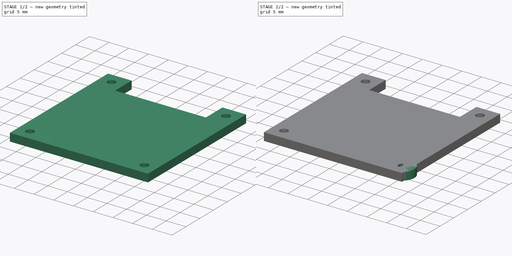
[diagram: build sequence overview — one tinted view per stage of 2, left to right]
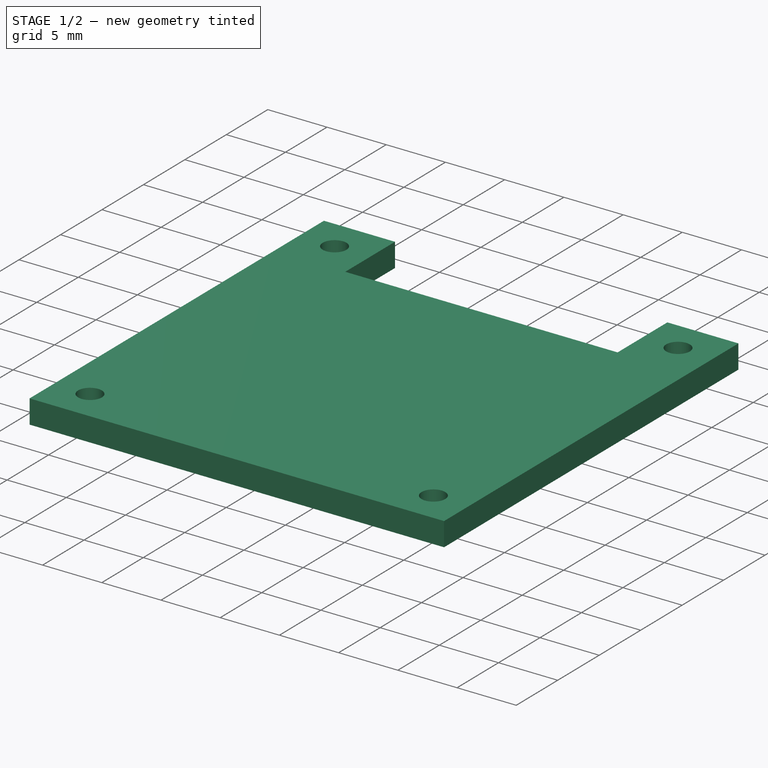
[diagram: stage 1 of 2 — iso view after this stage's code; geometry added in this stage tinted green]
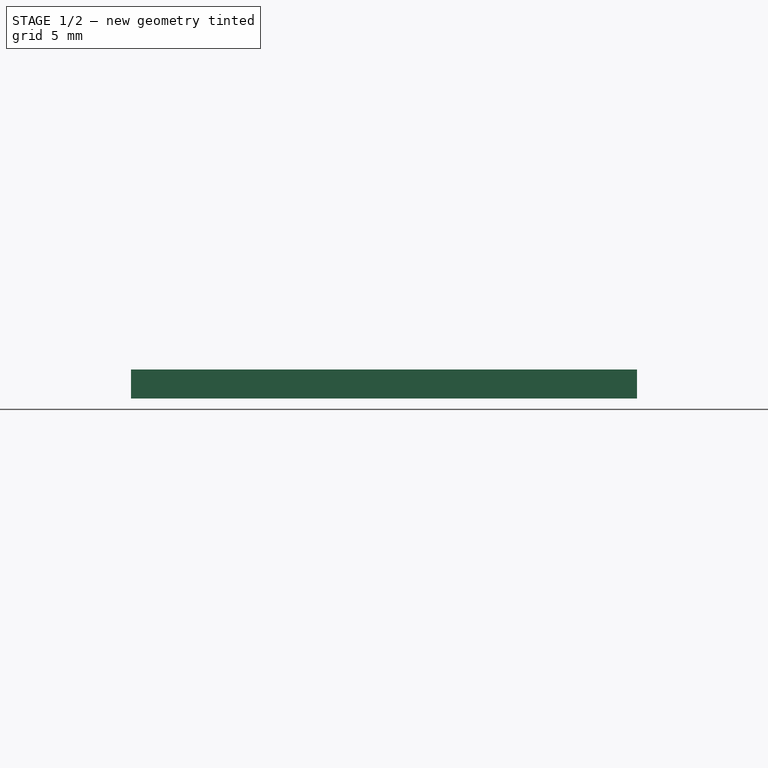
[diagram: stage 1 of 2 — front view after this stage's code; geometry added in this stage tinted green]
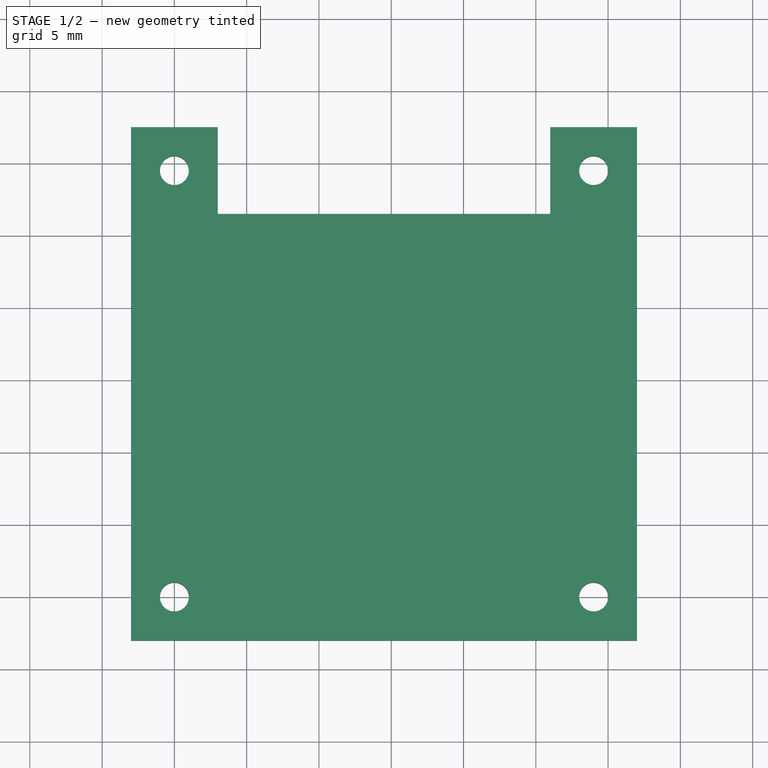
[diagram: stage 1 of 2 — top view after this stage's code; geometry added in this stage tinted green]
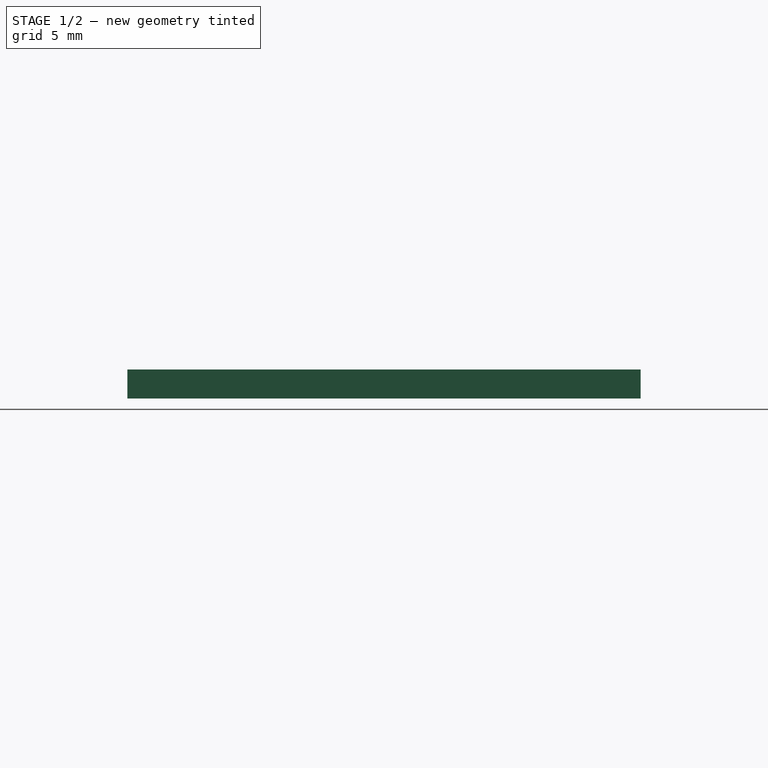
[diagram: stage 1 of 2 — right view after this stage's code; geometry added in this stage tinted green]
FCSTD DOCUMENT  (FreeCAD 0.18R15115 (Git))
Label: OLED mount
License: All rights reserved
LicenseURL: http://en.wikipedia.org/wiki/All_rights_reserved
objects: Sketcher::SketchObject×6, PartDesign::Body×3, PartDesign::Pad×2, PartDesign::ShapeBinder×2, Part::Loft×2
note: 17 computed .brp shape members not serialized (recipe doc carries the construction recipe); baked Part::Feature solids carry a one-line shape summary decoded from their .brp

FEATURE [Sketcher::SketchObject] Sketch001
  MapMode = 5
  Support = -> [XY_Plane001]
  sketch-geometry (19):
    g0: Circle CenterX=0 CenterY=0 CenterZ=0 NormalX=0 NormalY=0 NormalZ=1 AngleXU=0 Radius=1
    g1: Circle CenterX=29 CenterY=0 CenterZ=0 NormalX=0 NormalY=0 NormalZ=1 AngleXU=0 Radius=1
    g2: Circle CenterX=29 CenterY=29.5 CenterZ=0 NormalX=0 NormalY=0 NormalZ=1 AngleXU=0 Radius=1
    g3: Circle CenterX=0 CenterY=29.5 CenterZ=0 NormalX=0 NormalY=0 NormalZ=1 AngleXU=0 Radius=1
    g4: LineSegment StartX=32 StartY=32.5 StartZ=0 EndX=32 EndY=-3 EndZ=0
    g5: LineSegment StartX=32 StartY=-3 StartZ=0 EndX=-3 EndY=-3 EndZ=0
    g6: LineSegment StartX=-3 StartY=-3 StartZ=0 EndX=-3 EndY=32.5 EndZ=0
    g7: LineSegment StartX=3 StartY=26.5 StartZ=0 EndX=26 EndY=26.5 EndZ=0
    g8: LineSegment StartX=26 StartY=26.5 StartZ=0 EndX=26 EndY=32.5 EndZ=0
    g9: LineSegment StartX=3 StartY=32.5 StartZ=0 EndX=3 EndY=26.5 EndZ=0
    g10: LineSegment [constr] StartX=3 StartY=32.5 StartZ=0 EndX=26 EndY=26.5 EndZ=0
    g11: LineSegment [constr] StartX=3 StartY=26.5 StartZ=0 EndX=26 EndY=32.5 EndZ=0
    g12: GeomPoint X=14.5 Y=29.5 Z=0
    g13: LineSegment [constr] StartX=14.5 StartY=29.5 StartZ=0 EndX=0 EndY=29.5 EndZ=0
    g14: LineSegment [constr] StartX=14.5 StartY=29.5 StartZ=0 EndX=29 EndY=29.5 EndZ=0
    g15: LineSegment [constr] StartX=26 StartY=32.5 StartZ=0 EndX=29 EndY=29.5 EndZ=0
    g16: LineSegment [constr] StartX=26 StartY=26.5 StartZ=0 EndX=29 EndY=29.5 EndZ=0
    g17: LineSegment StartX=26 StartY=32.5 StartZ=0 EndX=32 EndY=32.5 EndZ=0
    g18: LineSegment StartX=-3 StartY=32.5 StartZ=0 EndX=3 EndY=32.5 EndZ=0
  constraints (49):
    c: Coincident(g0,g-1)
    c: PointOnObject(g1,g-1)
    c: PointOnObject(g3,g-2)
    c: Horizontal(g2,g3)
    c: Vertical(g2,g1)
    c: Diameter(g0) = 2
    c: Diameter(g1) = 2
    c: Diameter(g2) = 2
    c: Diameter(g3) = 2
    c: Distance(g0,g3) = 29.5
    c: Distance(g2,g3) = 29
    c: Coincident(g4,g5)
    c: Coincident(g5,g6)
    c: Horizontal(g5)
    c: Vertical(g4)
    c: Vertical(g6)
    c: Distance(g1,g4) = 3
    c: Distance(g1,g5) = 3
    c: Distance(g0,g6) = 3
    c: Horizontal(g6,g4)
    c: DistanceY(g3,g6) = 3
    c: Coincident(g7,g8)
    c: Coincident(g9,g7)
    c: Horizontal(g7)
    c: Vertical(g8)
    c: Vertical(g9)
    c: Horizontal(g8,g4)
    c: Horizontal(g9,g6)
    c: Coincident(g10,g9)
    c: Coincident(g10,g7)
    c: Coincident(g11,g7)
    c: Coincident(g11,g8)
    c: PointOnObject(g12,g10)
    c: PointOnObject(g12,g11)
    c: Coincident(g13,g12)
    c: Coincident(g13,g3)
    c: Coincident(g14,g12)
    c: Coincident(g14,g2)
    c: Equal(g14,g13)
    c: DistanceX(g8,g2) = 3
    c: Coincident(g15,g8)
    c: Coincident(g15,g2)
    c: Coincident(g16,g7)
    c: Coincident(g16,g2)
    c: Equal(g15,g16)
    c: Coincident(g17,g8)
    c: Coincident(g17,g4)
    c: Coincident(g18,g6)
    c: Coincident(g18,g9)
FEATURE [PartDesign::Pad] Pad001
  Length = 2
  Length2 = 100
  Profile = -> Sketch001
  Type = 0
FEATURE [PartDesign::Body] Body001  label="OLED mount"
  Group = -> [Sketch001,Pad001]
  Origin = -> Origin001
  Placement = pos=(3.5,-3,15) rot=(0.819161,0.219493,0.529904;0.936324rad)
  Tip = -> Pad001
FEATURE [PartDesign::Body] Body  label="PCB mount"
  Group = -> [Sketch,Pad]
  Origin = -> Origin
  Tip = -> Pad
FEATURE [PartDesign::ShapeBinder] ShapeBinder  label="oled"
  Placement = pos=(3.5,-3,15) rot=(0.819161,0.219493,0.529904;0.936324rad)
  Support = -> [Pad001]
  TraceSupport = true
FEATURE [PartDesign::ShapeBinder] ShapeBinder001  label="pcb"
  Placement = pos=(0,0,2) rot=(0,0,1;0rad)
  Support = -> [Pad]
  TraceSupport = false
FEATURE [Sketcher::SketchObject] Sketch002
  ExternalGeometry = -> [ShapeBinder001]
  MapMode = 5
  Placement = pos=(0,0,2) rot=(0,0,1;0rad)
  Support = -> [ShapeBinder001]
  sketch-geometry (4):
    g0: LineSegment StartX=4.5 StartY=19 StartZ=0 EndX=7.5 EndY=19 EndZ=0
    g1: LineSegment StartX=7.5 StartY=19 StartZ=0 EndX=7.5 EndY=1 EndZ=0
    g2: LineSegment StartX=7.5 StartY=1 StartZ=0 EndX=4.5 EndY=1 EndZ=0
    g3: LineSegment StartX=4.5 StartY=1 StartZ=0 EndX=4.5 EndY=19 EndZ=0
  constraints (11):
    c: Coincident(g0,g1)
    c: Coincident(g1,g2)
    c: Coincident(g2,g3)
    c: Coincident(g3,g0)
    c: Horizontal(g0)
    c: Horizontal(g2)
    c: Vertical(g1)
    c: Vertical(g3)
    c: Coincident(g0,g-4)
    c: PointOnObject(g1,g-7)
    c: PointOnObject(g-6,g1)
FEATURE [Sketcher::SketchObject] Sketch003
  ExternalGeometry = -> [ShapeBinder]
  MapMode = 5
  Placement = pos=(3.5,-3,15) rot=(0.960422,0.257344,-0.106596;3.89884rad)
  Support = -> [ShapeBinder]
  sketch-geometry (4):
    g0: LineSegment StartX=3 StartY=-26.5 StartZ=0 EndX=-3 EndY=-26.5 EndZ=0
    g1: LineSegment StartX=-3 StartY=-26.5 StartZ=0 EndX=-3 EndY=-3 EndZ=0
    g2: LineSegment StartX=-3 StartY=-3 StartZ=0 EndX=3 EndY=-3 EndZ=0
    g3: LineSegment StartX=3 StartY=-3 StartZ=0 EndX=3 EndY=-26.5 EndZ=0
  constraints (11):
    c: Coincident(g0,g1)
    c: Coincident(g1,g2)
    c: Coincident(g2,g3)
    c: Coincident(g3,g0)
    c: Horizontal(g0)
    c: Horizontal(g2)
    c: Vertical(g1)
    c: Vertical(g3)
    c: PointOnObject(g1,g-3)
    c: Distance(g-1,g2) = 3
    c: Coincident(g0,g-5)
FEATURE [Sketcher::SketchObject] Sketch004
  ExternalGeometry = -> [ShapeBinder001]
  MapMode = 5
  Placement = pos=(0,0,2) rot=(0,0,1;0rad)
  Support = -> [ShapeBinder001]
  sketch-geometry (4):
    g0: LineSegment StartX=25.5 StartY=19 StartZ=0 EndX=22.5 EndY=19 EndZ=0
    g1: LineSegment StartX=22.5 StartY=19 StartZ=0 EndX=22.5 EndY=1 EndZ=0
    g2: LineSegment StartX=22.5 StartY=1 StartZ=0 EndX=25.5 EndY=1 EndZ=0
    g3: LineSegment StartX=25.5 StartY=1 StartZ=0 EndX=25.5 EndY=19 EndZ=0
  constraints (11):
    c: Coincident(g0,g1)
    c: Coincident(g1,g2)
    c: Coincident(g2,g3)
    c: Coincident(g3,g0)
    c: Horizontal(g0)
    c: Horizontal(g2)
    c: Vertical(g1)
    c: Vertical(g3)
    c: Coincident(g0,g-4)
    c: PointOnObject(g1,g-5)
    c: PointOnObject(g-6,g1)
FEATURE [Sketcher::SketchObject] Sketch005
  ExternalGeometry = -> [ShapeBinder]
  MapMode = 5
  Placement = pos=(3.5,-3,15) rot=(0.960422,0.257344,-0.106596;3.89884rad)
  Support = -> [ShapeBinder]
  sketch-geometry (4):
    g0: LineSegment StartX=26 StartY=-26.5 StartZ=0 EndX=32 EndY=-26.5 EndZ=0
    g1: LineSegment StartX=32 StartY=-26.5 StartZ=0 EndX=32 EndY=-3 EndZ=0
    g2: LineSegment StartX=32 StartY=-3 StartZ=0 EndX=26 EndY=-3 EndZ=0
    g3: LineSegment StartX=26 StartY=-3 StartZ=0 EndX=26 EndY=-26.5 EndZ=0
  constraints (11):
    c: Coincident(g0,g1)
    c: Coincident(g1,g2)
    c: Coincident(g2,g3)
    c: Coincident(g3,g0)
    c: Horizontal(g0)
    c: Horizontal(g2)
    c: Vertical(g1)
    c: Vertical(g3)
    c: Coincident(g0,g-5)
    c: PointOnObject(g1,g-4)
    c: Distance(g-3,g2) = 3
FEATURE [PartDesign::Body] Body002  label="loft sketches"
  Group = -> [ShapeBinder,ShapeBinder001,Sketch002,Sketch003,Sketch004,Sketch005]
  Origin = -> Origin002
FEATURE [Part::Loft] Loft  label="LoftLeft"
  Closed = false
  MaxDegree = 5
  Ruled = false
  Sections = -> [Sketch002,Sketch003]
  Solid = false
FEATURE [Part::Loft] Loft001  label="LoftRight"
  Closed = false
  MaxDegree = 5
  Ruled = false
  Sections = -> [Sketch004,Sketch005]
  Solid = false
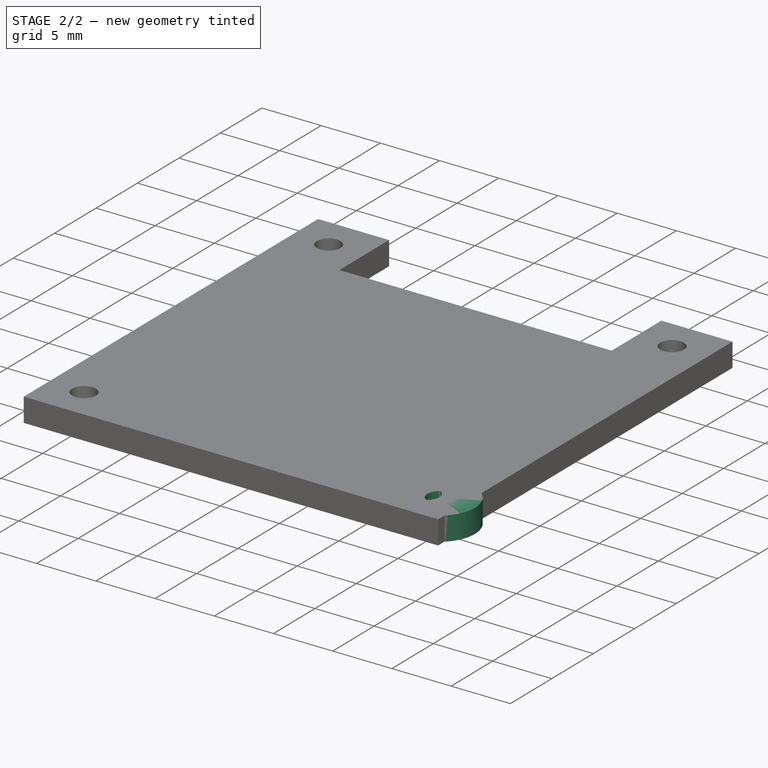
[diagram: stage 2 of 2 — iso view after this stage's code; geometry added in this stage tinted green]
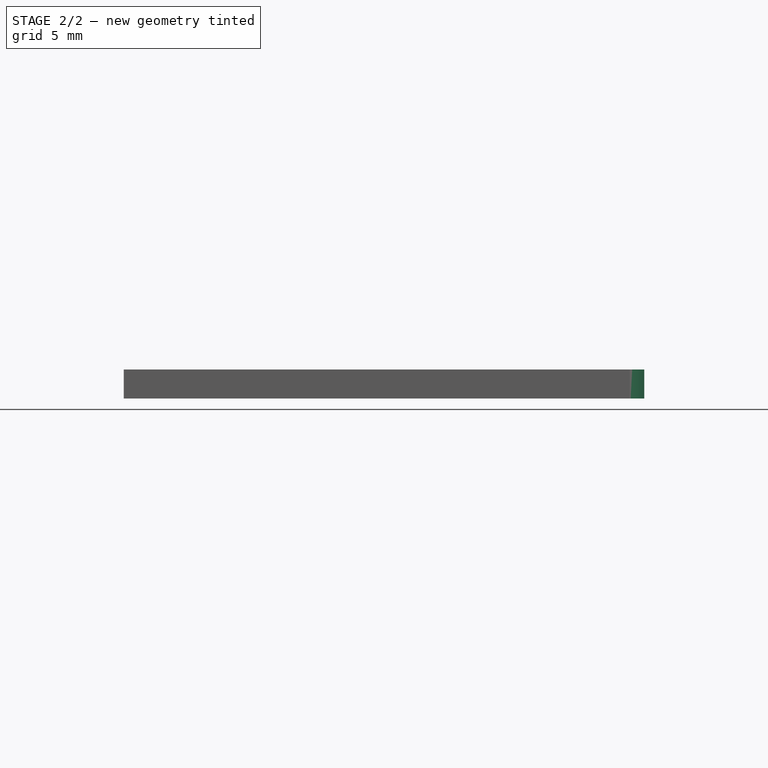
[diagram: stage 2 of 2 — front view after this stage's code; geometry added in this stage tinted green]
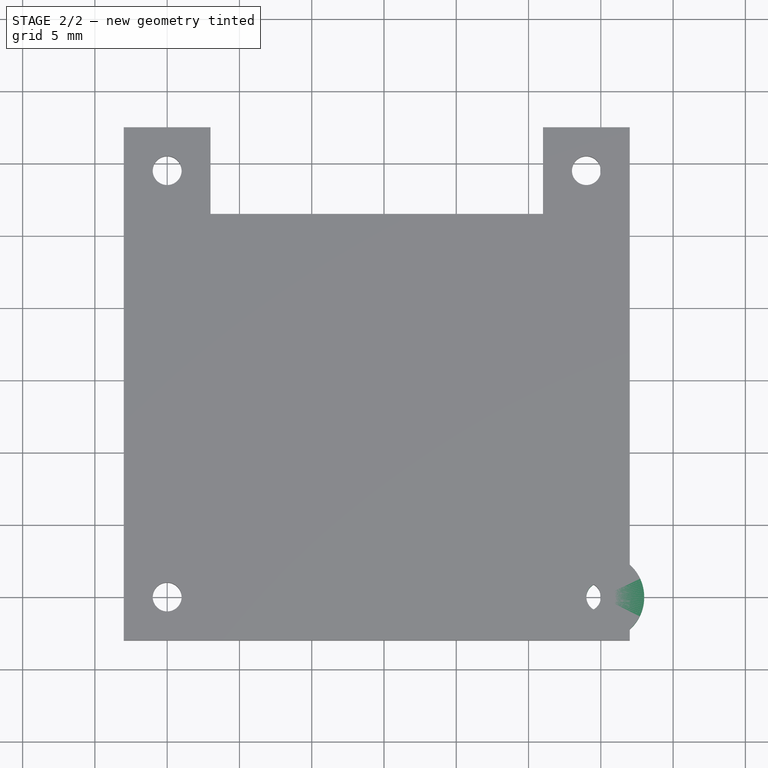
[diagram: stage 2 of 2 — top view after this stage's code; geometry added in this stage tinted green]
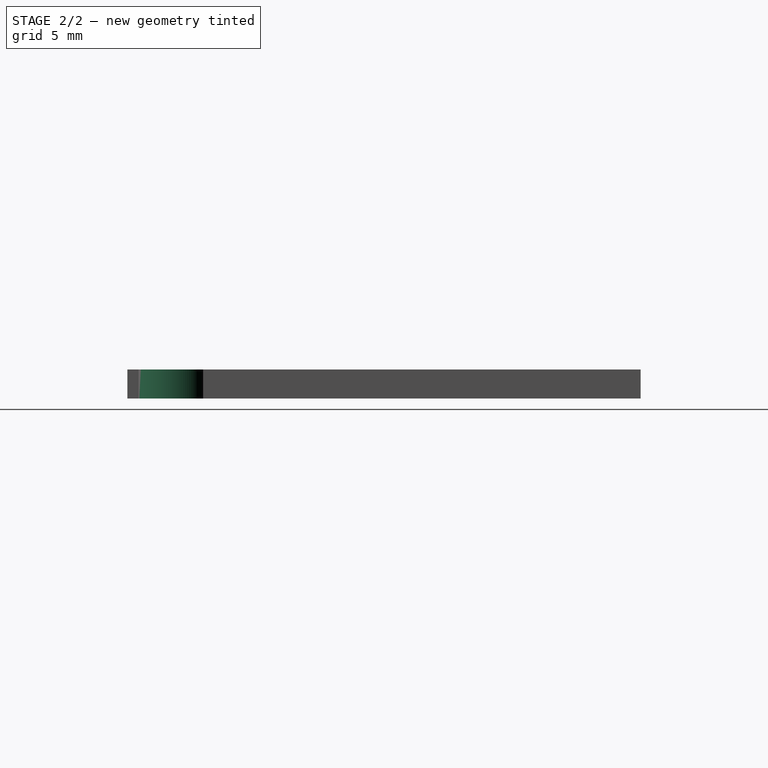
[diagram: stage 2 of 2 — right view after this stage's code; geometry added in this stage tinted green]
FEATURE [Sketcher::SketchObject] Sketch
  MapMode = 5
  Support = -> [XY_Plane]
  sketch-geometry (31):
    g0: Circle CenterX=0 CenterY=0 CenterZ=0 NormalX=0 NormalY=0 NormalZ=1 AngleXU=0 Radius=1
    g1: Circle CenterX=30 CenterY=0 CenterZ=0 NormalX=0 NormalY=0 NormalZ=1 AngleXU=0 Radius=1
    g2: Circle CenterX=15 CenterY=20 CenterZ=0 NormalX=0 NormalY=0 NormalZ=1 AngleXU=0 Radius=1
    g3: LineSegment [constr] StartX=15 StartY=20 StartZ=0 EndX=0 EndY=0 EndZ=0
    g4: LineSegment [constr] StartX=15 StartY=20 StartZ=0 EndX=30 EndY=0 EndZ=0
    g5: LineSegment StartX=7.5 StartY=4 StartZ=0 EndX=22.5 EndY=4 EndZ=0
    g6: LineSegment StartX=22.5 StartY=4 StartZ=0 EndX=22.5 EndY=16 EndZ=0
    g7: LineSegment StartX=22.5 StartY=16 StartZ=0 EndX=7.5 EndY=16 EndZ=0
    g8: LineSegment StartX=7.5 StartY=16 StartZ=0 EndX=7.5 EndY=4 EndZ=0
    g9: LineSegment [constr] StartX=7.5 StartY=16 StartZ=0 EndX=22.5 EndY=4 EndZ=0
    g10: LineSegment [constr] StartX=7.5 StartY=4 StartZ=0 EndX=22.5 EndY=16 EndZ=0
    g11: GeomPoint X=15 Y=10 Z=0
    g12: LineSegment [constr] StartX=0 StartY=0 StartZ=0 EndX=15 EndY=10 EndZ=0
    g13: LineSegment [constr] StartX=30 StartY=0 StartZ=0 EndX=15 EndY=10 EndZ=0
    g14: LineSegment [constr] StartX=15 StartY=20 StartZ=0 EndX=15 EndY=10 EndZ=0
    g15: ArcOfCircle CenterX=15 CenterY=20 CenterZ=0 NormalX=0 NormalY=0 NormalZ=1 AngleXU=0 Radius=3 StartAngle=0 EndAngle=3.14159
    g16: ArcOfCircle CenterX=30 CenterY=0 CenterZ=0 NormalX=0 NormalY=0 NormalZ=1 AngleXU=0 Radius=3 StartAngle=4.12439 EndAngle=7.26598
    g17: ArcOfCircle CenterX=0 CenterY=0 CenterZ=0 NormalX=0 NormalY=0 NormalZ=1 AngleXU=0 Radius=3 StartAngle=2.1588 EndAngle=5.30039
    g18: LineSegment [constr] StartX=25.5624 StartY=-6.6564 StartZ=0 EndX=33.8829 EndY=5.82435 EndZ=0
    g19: LineSegment [constr] StartX=-3.3282 StartY=4.9923 StartZ=0 EndX=3.3282 EndY=-4.9923 EndZ=0
    g20: LineSegment StartX=28.3359 StartY=-2.49615 StartZ=0 EndX=23.0917 EndY=1 EndZ=0
    g21: LineSegment StartX=31.6641 StartY=2.49615 StartZ=0 EndX=25.5 EndY=6.60555 EndZ=0
    g22: LineSegment StartX=-1.6641 StartY=2.49615 StartZ=0 EndX=4.5 EndY=6.60555 EndZ=0
    g23: LineSegment StartX=1.6641 StartY=-2.49615 StartZ=0 EndX=6.90833 EndY=1 EndZ=0
    g24: LineSegment StartX=18 StartY=20 StartZ=0 EndX=18 EndY=19 EndZ=0
    g25: LineSegment StartX=12 StartY=20 StartZ=0 EndX=12 EndY=19 EndZ=0
    g26: LineSegment StartX=6.90833 StartY=1 StartZ=0 EndX=23.0917 EndY=1 EndZ=0
    g27: LineSegment StartX=25.5 StartY=6.60555 StartZ=0 EndX=25.5 EndY=19 EndZ=0
    g28: LineSegment StartX=4.5 StartY=6.60555 StartZ=0 EndX=4.5 EndY=19 EndZ=0
    g29: LineSegment StartX=4.5 StartY=19 StartZ=0 EndX=12 EndY=19 EndZ=0
    g30: LineSegment StartX=18 StartY=19 StartZ=0 EndX=25.5 EndY=19 EndZ=0
  constraints (86):
    c: Coincident(g0,g-1)
    c: PointOnObject(g1,g-1)
    c: Diameter(g2) = 2
    c: Diameter(g0) = 2
    c: Diameter(g1) = 2
    c: Distance(g0,g1) = 30
    c: DistanceY(g0,g2) = 20
    c: Coincident(g3,g2)
    c: Coincident(g3,g0)
    c: Coincident(g4,g2)
    c: Coincident(g4,g1)
    c: Equal(g4,g3)
    c: Coincident(g5,g6)
    c: Coincident(g6,g7)
    c: Coincident(g7,g8)
    c: Coincident(g8,g5)
    c: Horizontal(g5)
    c: Horizontal(g7)
    c: Vertical(g6)
    c: Vertical(g8)
    c: Distance(g7) = 15
    c: Distance(g8) = 12
    c: Coincident(g9,g7)
    c: Coincident(g9,g5)
    c: Coincident(g10,g5)
    c: Coincident(g10,g6)
    c: PointOnObject(g11,g9)
    c: PointOnObject(g11,g10)
    c: Vertical(g11,g2)
    c: DistanceY(g11,g2) = 10
    c: Coincident(g12,g0)
    c: Coincident(g12,g11)
    c: Coincident(g13,g11)
    c: Coincident(g14,g2)
    c: Coincident(g14,g11)
    c: Coincident(g15,g2)
    c: Coincident(g16,g1)
    c: Coincident(g17,g0)
    c: Coincident(g13,g1)
    c: Horizontal(g15,g2)
    c: Horizontal(g15,g2)
    c: Distance(g15,g15) = 6
    c: PointOnObject(g1,g18)
    c: Distance(g18) = 15
    c: Perpendicular(g13,g18)
    c: Distance(g18,g1) = 7
    c: PointOnObject(g16,g18)
    c: PointOnObject(g16,g18)
    c: Diameter(g16) = 6
    c: PointOnObject(g0,g19)
    c: Perpendicular(g19,g12)
    c: Distance(g19,g0) = 6
    c: Distance(g19,g0) = 6
    c: PointOnObject(g17,g19)
    c: PointOnObject(g17,g19)
    c: Diameter(g17) = 6
    c: Coincident(g20,g16)
    c: Parallel(g20,g13)
    c: Distance(g20,g5) = 3
    c: Coincident(g21,g16)
    c: Parallel(g21,g13)
    c: Distance(g21,g6) = 3
    c: Coincident(g22,g17)
    c: Coincident(g23,g17)
    c: Parallel(g12,g22)
    c: Parallel(g23,g12)
    c: Distance(g23,g5) = 3
    c: Distance(g22,g8) = 3
    c: Coincident(g24,g15)
    c: Vertical(g24)
    c: Coincident(g25,g15)
    c: Vertical(g25)
    c: Distance(g24,g7) = 3
    c: Distance(g25,g7) = 3
    c: Coincident(g26,g23)
    c: Coincident(g26,g20)
    c: Coincident(g27,g21)
    c: Vertical(g27)
    c: Coincident(g28,g22)
    c: Coincident(g29,g28)
    c: Coincident(g29,g25)
    c: Horizontal(g29)
    c: Coincident(g30,g24)
    c: Coincident(g30,g27)
    c: Horizontal(g27,g24)
    c: Vertical(g28)
FEATURE [PartDesign::Pad] Pad
  Length = 2
  Length2 = 100
  Profile = -> Sketch
  Type = 0
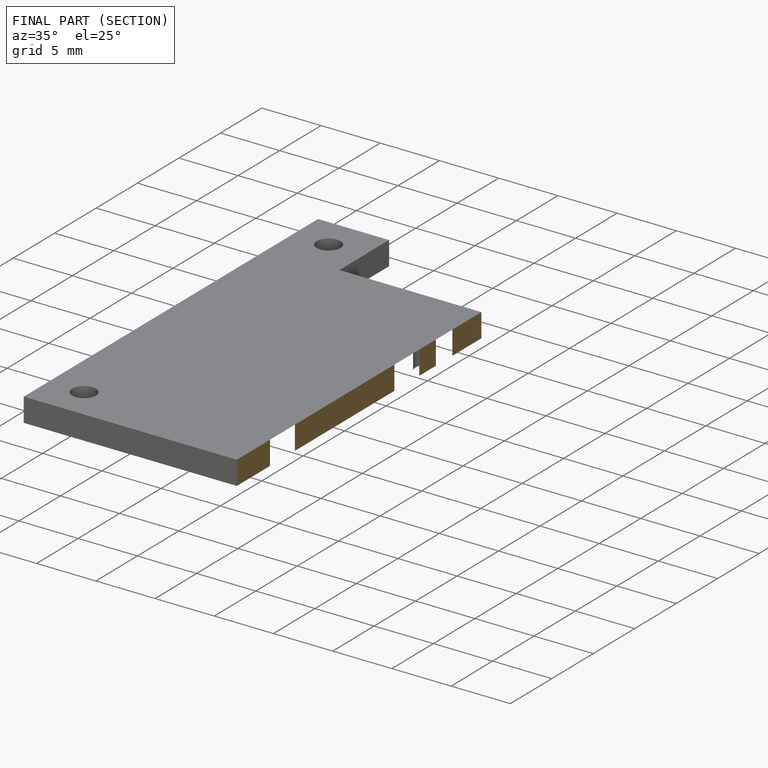
[diagram: finished part — half-section view (interior)]
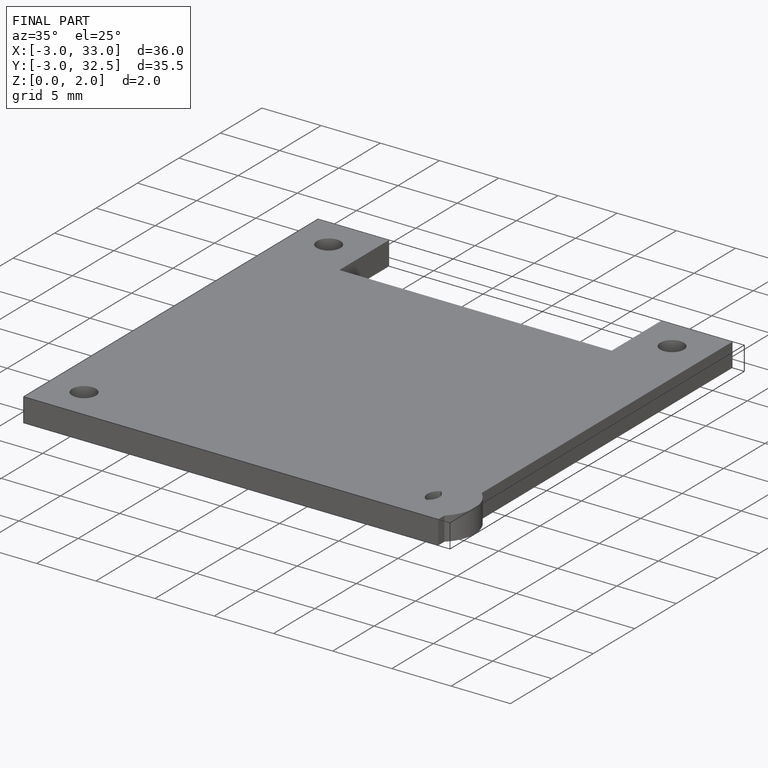
[diagram: finished part — iso view with bounding-box wireframe]
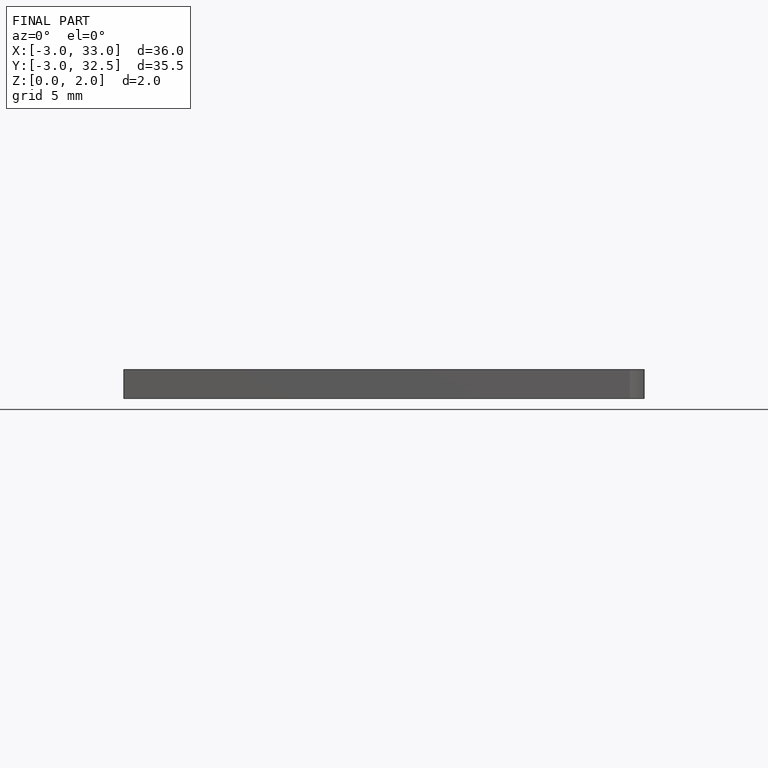
[diagram: finished part — front view with bounding-box wireframe]
